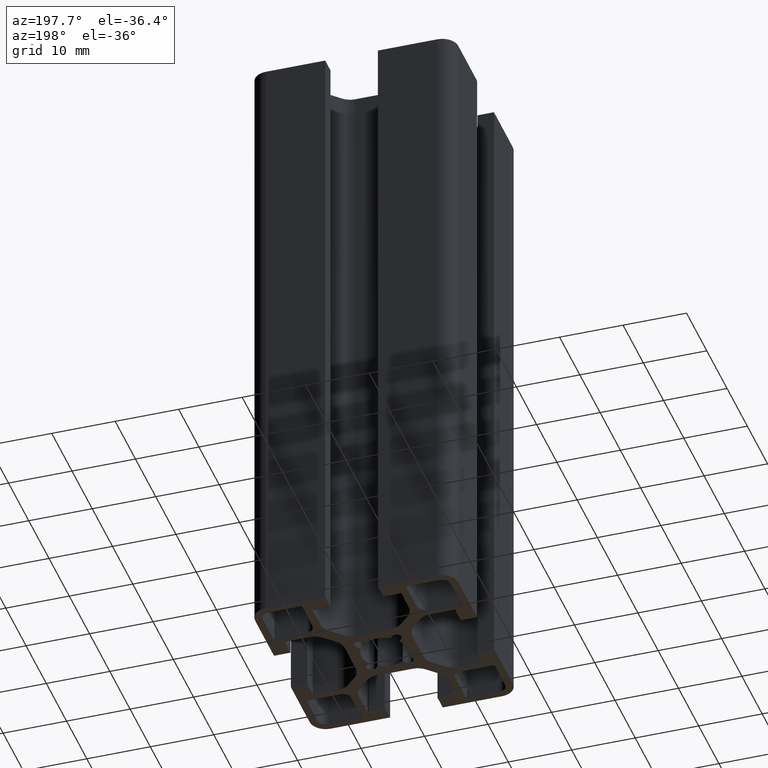
[diagram: clean part render]
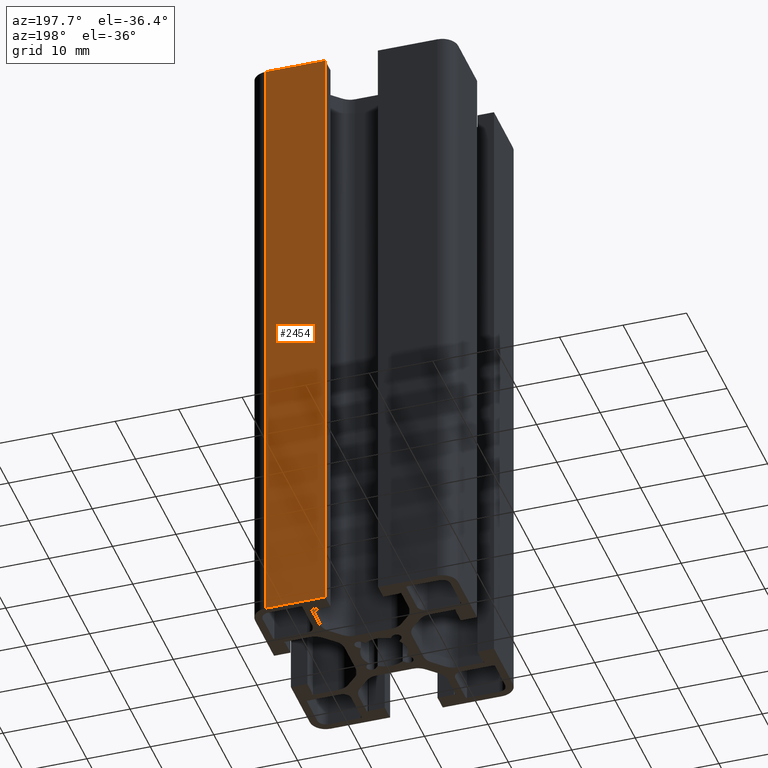
[diagram: same view with one face highlighted and labeled with its STEP entity id]
A machine part, auxiliary view. The second image highlights one B-rep face of the part: STEP entity #2454.
In plain terms, the highlighted planar face has unit normal (0, 1, 0).
Its self-contained STEP definition (entity closure, byte-faithful):
#298=FACE_OUTER_BOUND('',#420,.T.);
#420=EDGE_LOOP('',(#2015,#2016,#2017,#2018));
#684=LINE('',#4102,#940);
#685=LINE('',#4105,#941);
#686=LINE('',#4107,#942);
#687=LINE('',#4108,#943);
#940=VECTOR('',#3376,100.);
#941=VECTOR('',#3379,9.35000000000002);
#942=VECTOR('',#3380,9.35000000000002);
#943=VECTOR('',#3381,100.);
#1181=VERTEX_POINT('',#4098);
#1182=VERTEX_POINT('',#4100);
#1183=VERTEX_POINT('',#4104);
#1184=VERTEX_POINT('',#4106);
#1538=EDGE_CURVE('',#1181,#1182,#684,.T.);
#1539=EDGE_CURVE('',#1183,#1181,#685,.T.);
#1540=EDGE_CURVE('',#1184,#1182,#686,.T.);
#1541=EDGE_CURVE('',#1183,#1184,#687,.T.);
#2015=ORIENTED_EDGE('',*,*,#1539,.T.);
#2016=ORIENTED_EDGE('',*,*,#1538,.T.);
#2017=ORIENTED_EDGE('',*,*,#1540,.F.);
#2018=ORIENTED_EDGE('',*,*,#1541,.F.);
#2333=PLANE('',#2680);
#2454=ADVANCED_FACE('',(#298),#2333,.T.);
#2680=AXIS2_PLACEMENT_3D('',#4103,#3377,#3378);
#3376=DIRECTION('',(0.,0.,1.));
#3377=DIRECTION('center_axis',(0.,1.,0.));
#3378=DIRECTION('ref_axis',(-1.,0.,0.));
#3379=DIRECTION('',(-1.,0.,0.));
#3380=DIRECTION('',(-1.,0.,0.));
#3381=DIRECTION('',(0.,0.,1.));
#4098=CARTESIAN_POINT('',(4.1499963361,15.9999963361,0.));
#4100=CARTESIAN_POINT('',(4.1499963361,15.9999963361,100.));
#4102=CARTESIAN_POINT('',(4.1499963361,15.9999963361,0.));
#4103=CARTESIAN_POINT('Origin',(13.4999963361,15.9999963361,0.));
#4104=CARTESIAN_POINT('',(13.4999963361,15.9999963361,0.));
#4105=CARTESIAN_POINT('',(13.4999963361,15.9999963361,0.));
#4106=CARTESIAN_POINT('',(13.4999963361,15.9999963361,100.));
#4107=CARTESIAN_POINT('',(13.4999963361,15.9999963361,100.));
#4108=CARTESIAN_POINT('',(13.4999963361,15.9999963361,0.));